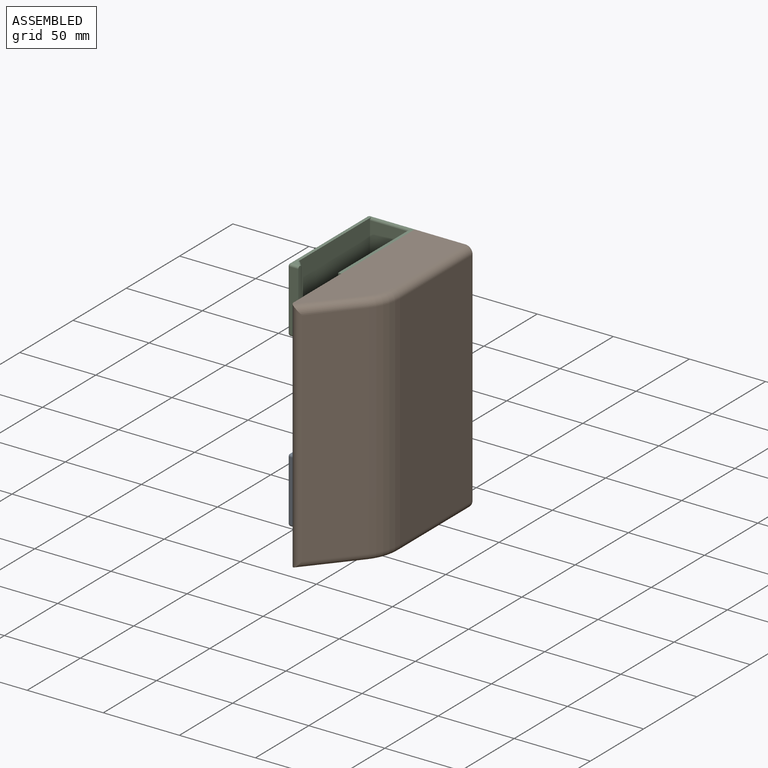
[diagram: assembled view]
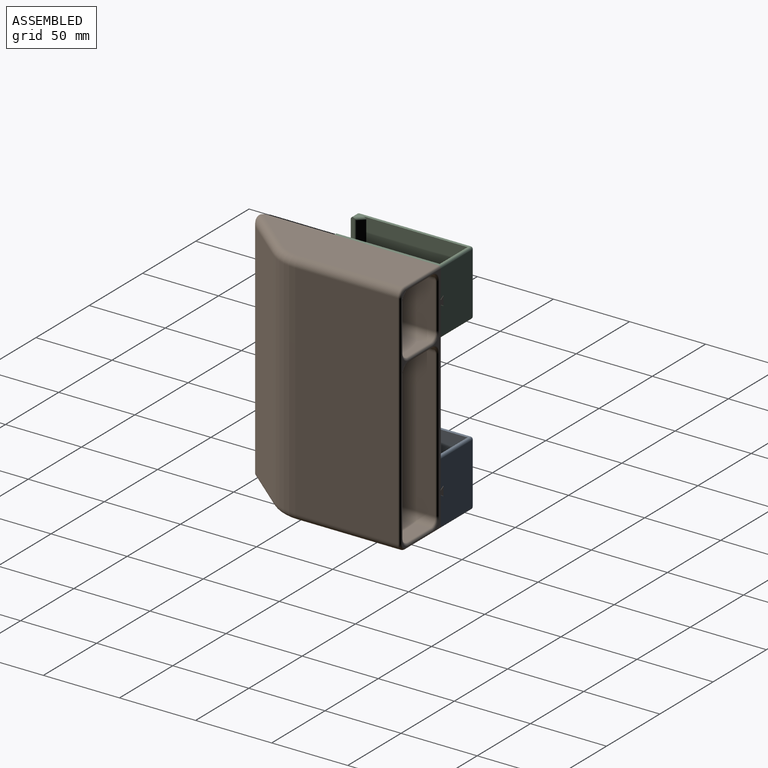
[diagram: assembled view, second angle]
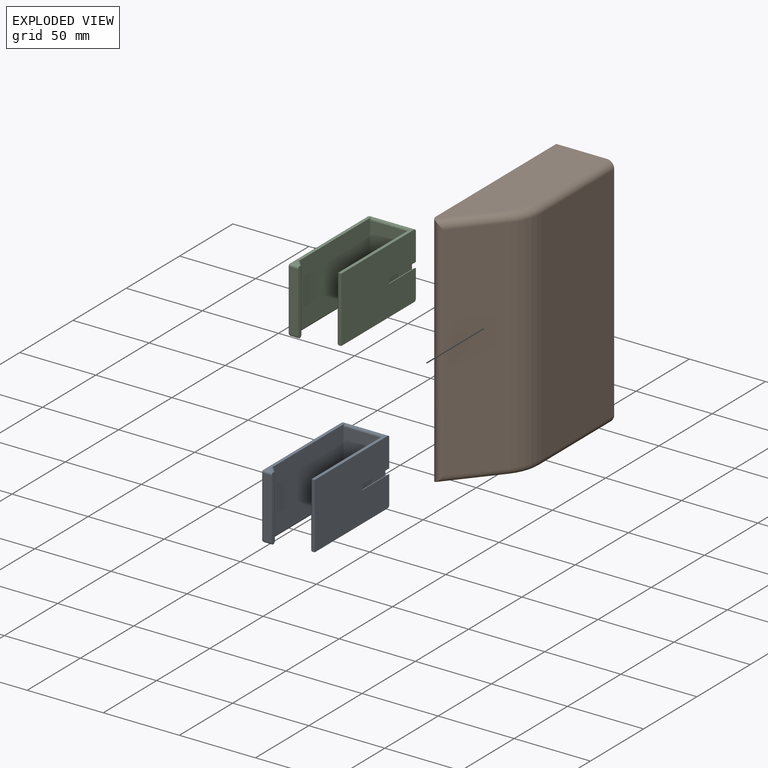
[diagram: exploded view]
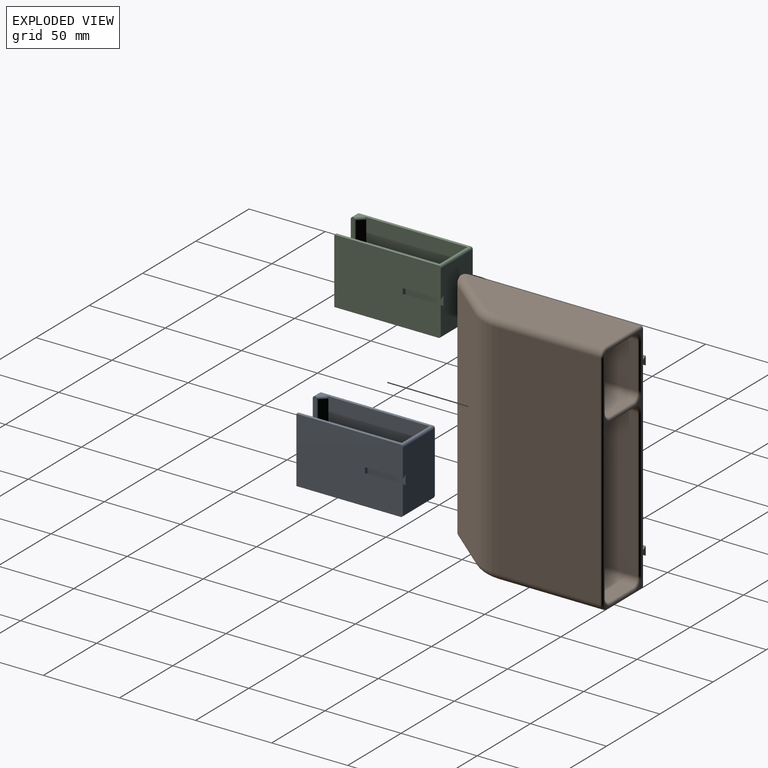
[diagram: exploded view, second angle]
ASSEMBLY  parts=3 mates=2
PART A: 36 faces, bbox 31x76x43 mm
  f0: plane 40x29.5mm, normal (0,1,0), area 1167.6mm2, adj f1,f23,f27,f31,f32,f33,f34
  f1: plane 70x43mm, normal (1,0,0), area 2923.6mm2, adj f0,f2,f11,f13,f23,f27,f32,f33
  f2: plane 68.5x1.5mm, normal (0,0,1), area 102.8mm2, adj f1,f11,f17,f23
  f3: plane 5.37x4.83mm, normal (0,0,-1), area 13mm2, adj f20,f21,f26
  f4: plane 73x40mm, normal (-1,0,0), area 2920mm2, adj f19,f26,f28,f31
  f5: plane 40x5.5mm, normal (0,-1,0), area 220mm2, adj f6,f18,f19,f20
  f6: plane 42.94x2.42mm, normal (1,0,0), area 102.8mm2, adj f5,f14,f15,f18,f20,f21
  f7: plane 40x4.01mm, normal (0.74,0.67,0), area 216.1mm2, adj f8,f14,f15,f21
  f8: plane 69.3x41.5mm, normal (1,0,0), area 2721.8mm2, adj f7,f9,f12,f14,f23,f26
  f9: plane 40x25mm, normal (0,-1,0), area 1000mm2, adj f8,f10,f23,f27
  f10: plane 65.5x40mm, normal (-1,0,0), area 2620mm2, adj f9,f16,f17,f22
  f11: plane 43x1.5mm, normal (0,-1,0), area 64.5mm2, adj f1,f2,f13,f16
  f12: plane 73x4.83mm, normal (0,0,1), area 115.7mm2, adj f8,f14,f18,f23,f28
  f13: plane 68.5x1.5mm, normal (0,0,-1), area 102.7mm2, adj f1,f11,f22,f27
  f14: cylinder r=1.5mm len=6.44mm, axis (0.67,-0.74,0), area 13.7mm2, adj f6,f7,f8,f12,f15,f18
  f15: cylinder r=1.5mm len=42.01mm, axis (0,0,1), area 45.1mm2, adj f6,f7,f14,f21
  f16: cylinder r=1.5mm len=43mm, axis (0,0,-1), area 98.7mm2, adj f10,f11,f17,f22
  f17: cylinder r=1.5mm len=68.5mm, axis (0,1,0), area 157.9mm2, adj f2,f10,f16,f23
  f18: cylinder r=1.5mm len=5.5mm, axis (-1,0,0), area 12.9mm2, adj f5,f6,f12,f14,f24
  f19: cylinder r=1.5mm len=40mm, axis (0,0,-1), area 94.2mm2, adj f4,f5,f24,f25
  f20: cylinder r=1.5mm len=5.5mm, axis (1,0,0), area 12.9mm2, adj f3,f5,f6,f21,f25
  f21: cylinder r=1.5mm len=6.87mm, axis (-0.67,0.74,0), area 15.6mm2, adj f3,f6,f7,f15,f20,f26
  f22: cylinder r=1.5mm len=68.5mm, axis (0,-1,0), area 157.9mm2, adj f10,f13,f16,f27
  f23: cylinder r=1.5mm len=29.5mm, axis (-1,0,0), area 129.7mm2, adj f0,f1,f2,f8,f9,f12,f17,f29
  f24: sphere r=1.5mm, area 3.5mm2, adj f18,f19,f28
  f25: sphere r=1.5mm, area 3.5mm2, adj f19,f20,f26
  f26: cylinder r=1.5mm len=73mm, axis (0,1,0), area 328.2mm2, adj f3,f4,f8,f21,f25,f27,f30
  f27: cylinder r=1.5mm len=29.5mm, axis (1,0,0), area 131mm2, adj f0,f1,f9,f13,f22,f26,f30
  f28: cylinder r=1.5mm len=73mm, axis (0,1,0), area 172mm2, adj f4,f12,f24,f29
  f29: sphere r=1.5mm, area 3.5mm2, adj f23,f28,f31
  f30: sphere r=1.5mm, area 3.5mm2, adj f26,f27,f31
  f31: cylinder r=1.5mm len=40mm, axis (0,0,-1), area 94.2mm2, adj f0,f4,f29,f30
  f32: plane 25x2.54mm, normal (-0.5,0,-0.87), area 73.3mm2, adj f0,f1,f34,f35
  f33: plane 25x2.54mm, normal (-0.5,0,0.87), area 73.3mm2, adj f0,f1,f34,f35
  f34: plane 25x6.35mm, normal (1,0,0), area 158.7mm2, adj f0,f32,f33,f35
  f35: plane 6.35x2.54mm, normal (0,1,0), area 12.4mm2, adj f1,f32,f33,f34
PART B: 61 faces, bbox 43x119.9x156.8 mm
  f0: plane 6.5x6.5mm, normal (0,1,0), area 6.4mm2, adj f54,f56,f58,f60
  f1: plane 13x6.5mm, normal (0,1,0), area 18.1mm2, adj f52,f56,f59
  f2: plane 6.5x6.5mm, normal (0,1,0), area 6.4mm2, adj f48,f53,f56,f57
  f3: plane 156x114.3mm, normal (-1,0,0), area 17683.7mm2, adj f4,f7,f9,f10,f23,f24,f26,f27
  f4: plane 153x10.5mm, normal (0,1,0), area 287.6mm2, adj f3,f23,f24,f25,f27,f28,f29,f45
  f5: cylinder r=30mm len=146mm, axis (0,0,-1), area 3057.8mm2, adj f6,f8,f41,f43
  f6: plane 146x67.58mm, normal (1,0,0), area 9866.8mm2, adj f5,f40,f44,f56
  f7: cylinder r=4mm len=156mm, axis (0,0,-1), area 1498.9mm2, adj f3,f8,f9,f10,f39,f42
  f8: plane 146x28.5mm, normal (0.77,-0.64,0), area 5432.4mm2, adj f5,f7,f39,f42
  f9: plane 115.12x33mm, normal (0,0,1), area 3169.2mm2, adj f3,f7,f42,f43,f44,f54
  f10: plane 115.12x33mm, normal (0,0,-1), area 3169.2mm2, adj f3,f7,f39,f40,f41,f48
  f11: plane 115.54x30mm, normal (1,0,0), area 3466.3mm2, adj f12,f35,f37,f49
  f12: plane 40x30.61mm, normal (-0.77,0.64,0), area 1581.5mm2, adj f11,f13,f15,f16,f35,f37
  f13: cylinder r=27mm len=40mm, axis (0,0,1), area 689.5mm2, adj f12,f14,f15,f16,f36,f38
  f14: plane 67.58x30mm, normal (-1,0,0), area 2027.4mm2, adj f13,f36,f38,f56
  f15: plane 109.59x22mm, normal (0,0,1), area 2122.4mm2, adj f12,f13,f37,f38,f51
  f16: plane 109.59x22mm, normal (0,0,-1), area 2122.4mm2, adj f12,f13,f35,f36,f54
  f17: plane 115.54x97mm, normal (1,0,0), area 11207.8mm2, adj f18,f31,f33,f45
  f18: plane 107x30.61mm, normal (-0.77,0.64,0), area 4258.6mm2, adj f17,f19,f21,f22,f31,f33
  f19: cylinder r=27mm len=107mm, axis (0,0,1), area 1952.4mm2, adj f18,f20,f21,f22,f32,f34
  f20: plane 97x67.58mm, normal (-1,0,0), area 6555.3mm2, adj f19,f32,f34,f56
  f21: plane 109.59x22mm, normal (0,0,1), area 2122.4mm2, adj f18,f19,f33,f34,f48
  f22: plane 109.59x22mm, normal (0,0,-1), area 2122.4mm2, adj f18,f19,f31,f32,f51
  f23: plane 25x2.5mm, normal (0.5,0,0.87), area 72.2mm2, adj f3,f4,f25,f26
  f24: plane 25x2.5mm, normal (0.5,0,-0.87), area 72.2mm2, adj f3,f4,f25,f26
  f25: plane 25x5.8mm, normal (-1,0,0), area 145mm2, adj f4,f23,f24,f26
  f26: plane 5.8x2.5mm, normal (0,-1,0), area 10.9mm2, adj f3,f23,f24,f25
  f27: plane 25x2.5mm, normal (0.5,0,0.87), area 72.2mm2, adj f3,f4,f29,f30
  f28: plane 25x2.5mm, normal (0.5,0,-0.87), area 72.2mm2, adj f3,f4,f29,f30
  f29: plane 25x5.8mm, normal (-1,0,0), area 145mm2, adj f4,f27,f28,f30
  f30: plane 5.8x2.5mm, normal (0,-1,0), area 10.9mm2, adj f3,f27,f28,f29
  f31: cylinder r=5mm len=115.54mm, axis (0,1,0), area 890.5mm2, adj f17,f18,f22,f47
  f32: cylinder r=5mm len=83.23mm, axis (0,-1,0), area 597.1mm2, adj f19,f20,f22,f52
  f33: cylinder r=5mm len=115.54mm, axis (0,-1,0), area 890.5mm2, adj f17,f18,f21,f46
  f34: cylinder r=5mm len=83.23mm, axis (0,1,0), area 597.1mm2, adj f19,f20,f21,f53
  f35: cylinder r=5mm len=115.54mm, axis (0,1,0), area 890.5mm2, adj f11,f12,f16,f55
  f36: cylinder r=5mm len=83.23mm, axis (0,-1,0), area 597.1mm2, adj f13,f14,f16,f60
  f37: cylinder r=5mm len=115.54mm, axis (0,-1,0), area 890.5mm2, adj f11,f12,f15,f50
  f38: cylinder r=5mm len=83.23mm, axis (0,1,0), area 597.1mm2, adj f13,f14,f15,f59
  f39: cylinder r=5mm len=34.78mm, axis (0.64,0.77,0), area 313.5mm2, adj f7,f8,f10,f41
  f40: cylinder r=5mm len=67.58mm, axis (0,1,0), area 530.8mm2, adj f6,f10,f41,f57
  f41: torus R=25mm, axis (0,0,1), area 154.5mm2, adj f5,f10,f39,f40
  f42: cylinder r=5mm len=34.78mm, axis (-0.64,-0.77,0), area 313.5mm2, adj f7,f8,f9,f43
  f43: torus R=25mm, axis (0,0,1), area 154.5mm2, adj f5,f9,f42,f44
  f44: cylinder r=5mm len=67.58mm, axis (0,-1,0), area 530.8mm2, adj f6,f9,f43,f58
  f45: cylinder r=1.5mm len=97mm, axis (0,0,1), area 228.6mm2, adj f4,f17,f46,f47
  f46: torus R=6.5mm, axis (0,-1,0), area 20.5mm2, adj f4,f33,f45,f48
  f47: torus R=6.5mm, axis (0,-1,0), area 20.5mm2, adj f4,f31,f45,f51
  f48: cylinder r=1.5mm len=33mm, axis (1,0,0), area 129.6mm2, adj f2,f3,f4,f10,f21,f46,f53,f57
  f49: cylinder r=1.5mm len=30mm, axis (0,0,1), area 70.7mm2, adj f4,f11,f50,f55
  f50: torus R=6.5mm, axis (0,-1,0), area 20.5mm2, adj f4,f37,f49,f51
  f51: cylinder r=1.5mm len=22mm, axis (-1,0,0), area 103.7mm2, adj f15,f22,f47,f50,f52,f59
  f52: torus R=6.5mm, axis (0,-1,0), area 20.5mm2, adj f1,f32,f51,f56
  f53: torus R=6.5mm, axis (0,-1,0), area 20.5mm2, adj f2,f34,f48,f56
  f54: cylinder r=1.5mm len=33mm, axis (1,0,0), area 129.6mm2, adj f0,f3,f4,f9,f16,f55,f58,f60
  f55: torus R=6.5mm, axis (0,-1,0), area 20.5mm2, adj f4,f35,f49,f54
  f56: cylinder r=1.5mm len=146mm, axis (0,0,1), area 643.2mm2, adj f0,f1,f2,f6,f14,f20,f52,f53
  f57: torus R=3.5mm, axis (0,-1,0), area 16.5mm2, adj f2,f40,f48,f56
  f58: torus R=3.5mm, axis (0,-1,0), area 16.5mm2, adj f0,f44,f54,f56
  f59: torus R=6.5mm, axis (0,-1,0), area 20.5mm2, adj f1,f38,f51,f56
  f60: torus R=6.5mm, axis (0,-1,0), area 20.5mm2, adj f0,f36,f54,f56
PART C: same geometry as A
PLACE A t=(-123.1,-52.99,-99.05)mm
PLACE B t=(-120.11,-27.99,-42.55)mm
PLACE C t=(-123.1,-52.99,13.95)mm
MATE fastened B.f30 <-> A.f35  axis (0,-1,0) through (-121.49,-52.99,-99.05)mm
MATE fastened B.f26 <-> C.f35  axis (0,-1,0) through (-121.49,-52.99,13.95)mm
